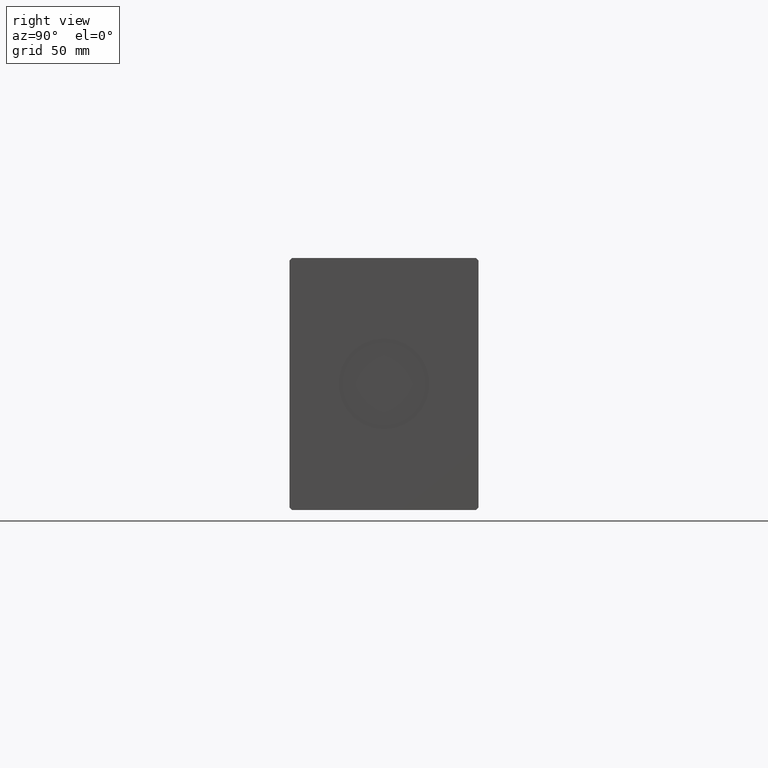
[diagram: clean part render]
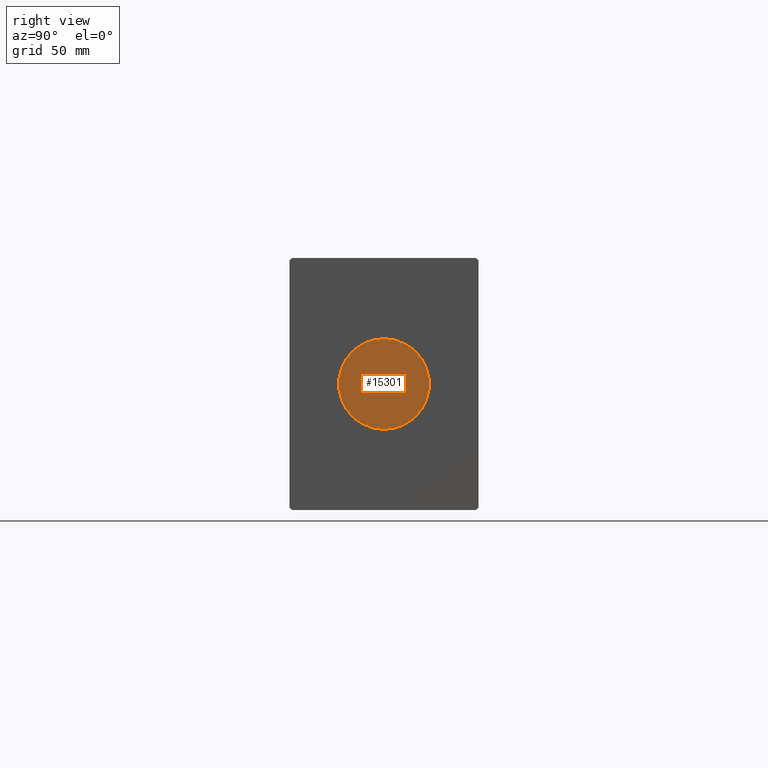
[diagram: same view with one face highlighted and labeled with its STEP entity id]
A machine part, right view. The second image highlights one B-rep face of the part: STEP entity #15301.
In plain terms, the highlighted planar face has unit normal (1, 0, 0).
Its self-contained STEP definition (entity closure, byte-faithful):
#2349 = DIRECTION ( 'NONE',  ( 0.000000000000000000, 0.000000000000000000, -1.000000000000000000 ) ) ;
#2729 = DIRECTION ( 'NONE',  ( 1.000000000000000000, 0.000000000000000000, 0.000000000000000000 ) ) ;
#3928 = CIRCLE ( 'NONE', #34212, 18.00000000000000000 ) ;
#4115 = CARTESIAN_POINT ( 'NONE',  ( 261.8000000000000114, 0.000000000000000000, -18.00000000000000000 ) ) ;
#5403 = ORIENTED_EDGE ( 'NONE', *, *, #17410, .T. ) ;
#5420 = CARTESIAN_POINT ( 'NONE',  ( 261.8000000000000114, 0.000000000000000000, 0.000000000000000000 ) ) ;
#5652 = CARTESIAN_POINT ( 'NONE',  ( 261.8000000000000114, 0.000000000000000000, 0.000000000000000000 ) ) ;
#8540 = PLANE ( 'NONE',  #35459 ) ;
#10285 = VERTEX_POINT ( 'NONE', #4115 ) ;
#15301 = ADVANCED_FACE ( 'NONE', ( #18023 ), #8540, .T. ) ;
#16824 = DIRECTION ( 'NONE',  ( 1.000000000000000000, 0.000000000000000000, 0.000000000000000000 ) ) ;
#17028 = DIRECTION ( 'NONE',  ( 0.000000000000000000, 0.000000000000000000, -1.000000000000000000 ) ) ;
#17410 = EDGE_CURVE ( 'NONE', #32043, #10285, #3928, .T. ) ;
#18023 = FACE_OUTER_BOUND ( 'NONE', #20509, .T. ) ;
#20509 = EDGE_LOOP ( 'NONE', ( #40708, #5403 ) ) ;
#20679 = CIRCLE ( 'NONE', #27246, 18.00000000000000000 ) ;
#21116 = DIRECTION ( 'NONE',  ( 1.000000000000000000, 0.000000000000000000, 0.000000000000000000 ) ) ;
#24071 = EDGE_CURVE ( 'NONE', #10285, #32043, #20679, .T. ) ;
#27246 = AXIS2_PLACEMENT_3D ( 'NONE', #29175, #16824, #17028 ) ;
#29175 = CARTESIAN_POINT ( 'NONE',  ( 261.8000000000000114, 0.000000000000000000, 0.000000000000000000 ) ) ;
#30741 = DIRECTION ( 'NONE',  ( 0.000000000000000000, 0.000000000000000000, -1.000000000000000000 ) ) ;
#32043 = VERTEX_POINT ( 'NONE', #33210 ) ;
#33210 = CARTESIAN_POINT ( 'NONE',  ( 261.8000000000000114, 2.204364238465235428E-15, 18.00000000000000000 ) ) ;
#34212 = AXIS2_PLACEMENT_3D ( 'NONE', #5420, #2729, #30741 ) ;
#35459 = AXIS2_PLACEMENT_3D ( 'NONE', #5652, #21116, #2349 ) ;
#40708 = ORIENTED_EDGE ( 'NONE', *, *, #24071, .T. ) ;